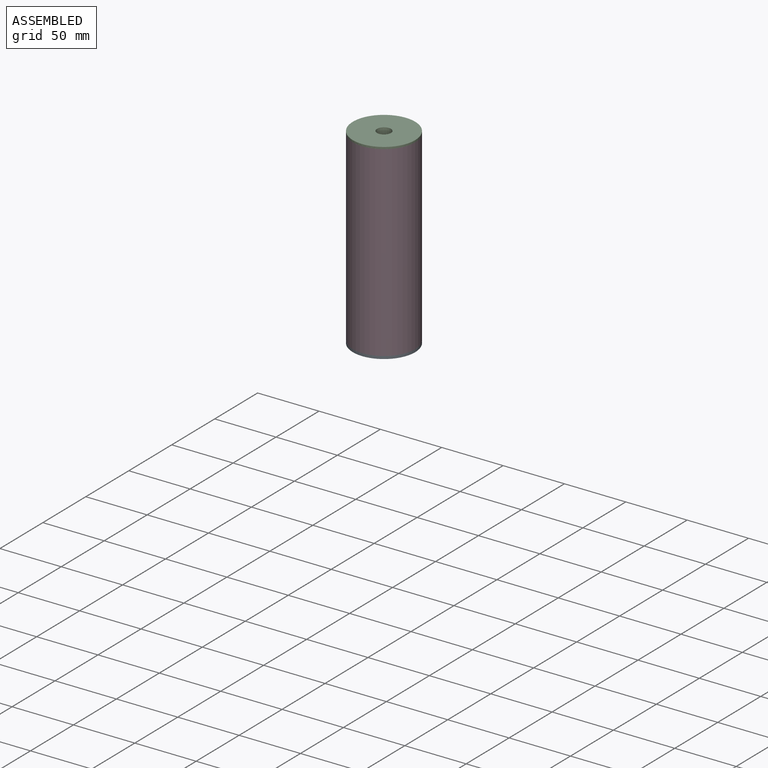
[diagram: assembled view]
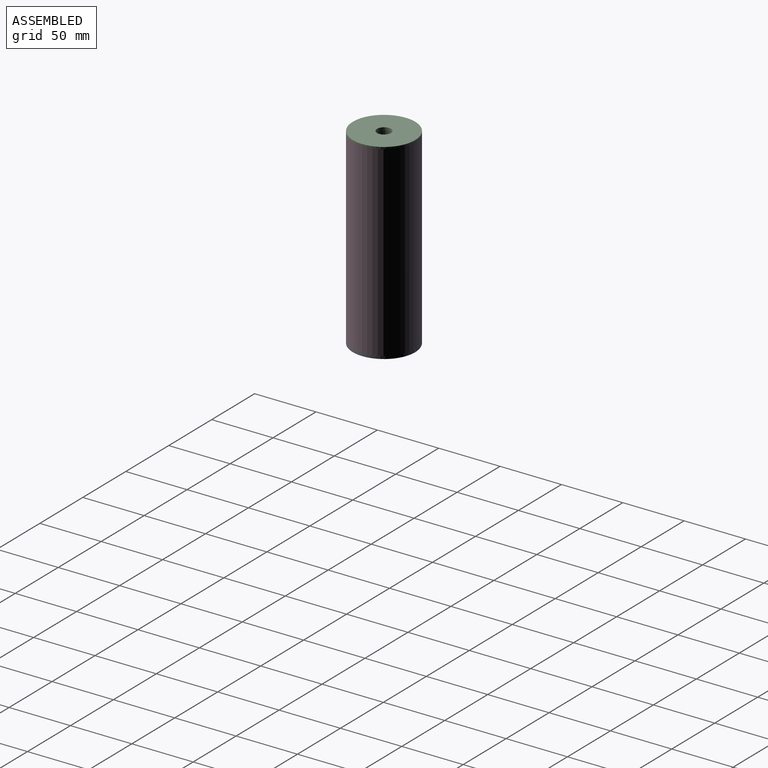
[diagram: assembled view, second angle]
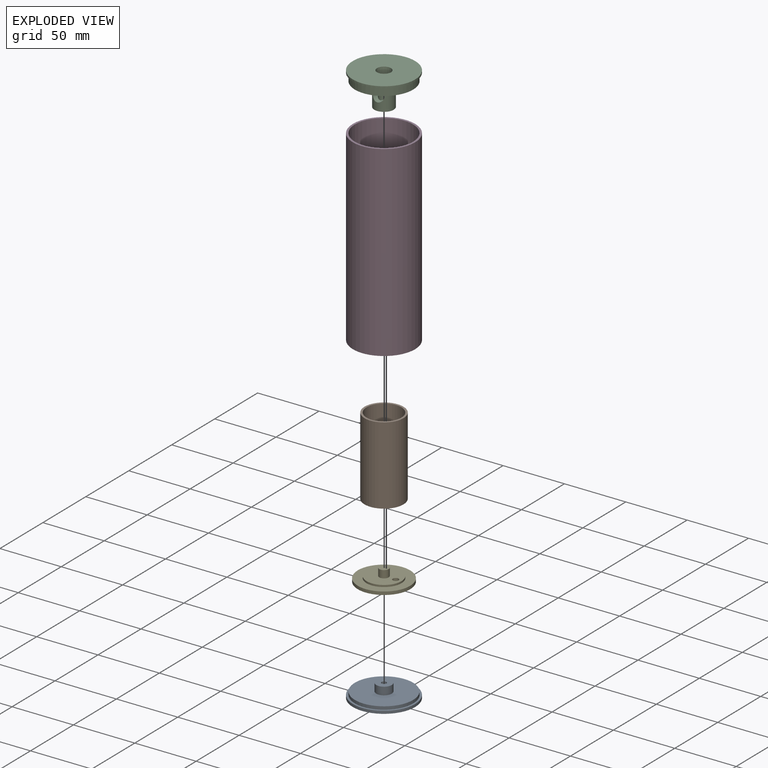
[diagram: exploded view]
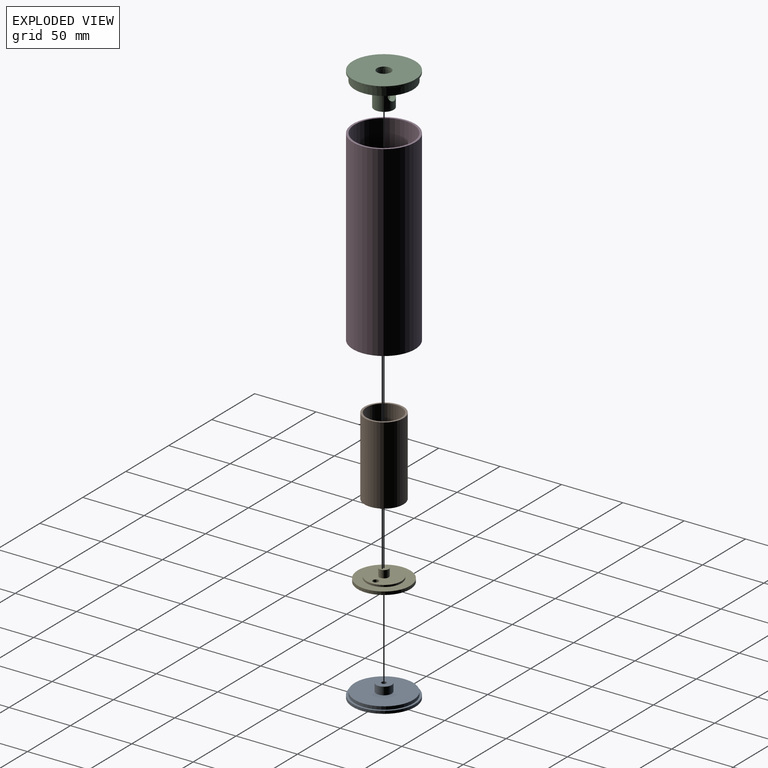
[diagram: exploded view, second angle]
ASSEMBLY  parts=5 mates=8
PART A: 9 faces, bbox 50.8x50.8x11.1 mm
  f0: cylinder r=25.4mm len=50.8mm, axis (0,0,1), area 354.7mm2, adj f1,f3
  f1: plane 50.8x50.8mm, normal (0,0,-1), area 2026.8mm2, adj f0
  f2: cylinder r=23.75mm len=47.5mm, axis (0,0,1), area 379mm2, adj f3,f4
  f3: plane 50.8x50.8mm, normal (0,0,1), area 254.9mm2, adj f0,f2
  f4: plane 47.5x47.5mm, normal (0,0,1), area 1645.2mm2, adj f2,f5
  f5: cylinder r=6.35mm len=12.7mm, axis (0,0,-1), area 253.4mm2, adj f4,f6
  f6: plane 12.7x12.7mm, normal (0,0,1), area 114.3mm2, adj f5,f7
  f7: cylinder r=1.98mm len=7.62mm, axis (0,0,1), area 95mm2, adj f6,f8
  f8: plane 3.97x3.97mm, normal (0,0,1), area 12.4mm2, adj f7
PART B: 4 faces, bbox 31.8x31.8x63.5 mm
  f0: cylinder r=14.22mm len=63.5mm, axis (0,0,1), area 5675.1mm2, adj f2,f3
  f1: cylinder r=15.88mm len=63.5mm, axis (0,0,1), area 6333.8mm2, adj f2,f3
  f2: plane 31.75x31.75mm, normal (0,0,-1), area 156.1mm2, adj f0,f1
  f3: plane 31.75x31.75mm, normal (0,0,1), area 156.1mm2, adj f0,f1
PART C: 16 faces, bbox 50.8x50.8x27 mm
  f0: cylinder r=4.76mm len=15.88mm, axis (0,-1,0), area 311.3mm2, adj f8,f12,f13
  f1: cylinder r=25.4mm len=50.8mm, axis (0,0,1), area 253.4mm2, adj f2,f3
  f2: plane 50.8x50.8mm, normal (0,0,1), area 1924.2mm2, adj f1,f10
  f3: plane 50.8x50.8mm, normal (0,0,-1), area 254.9mm2, adj f1,f4
  f4: cylinder r=23.75mm len=47.5mm, axis (0,0,-1), area 947.5mm2, adj f3,f5
  f5: plane 47.5x47.5mm, normal (0,0,-1), area 1136.3mm2, adj f4,f6
  f6: cylinder r=14.22mm len=28.45mm, axis (0,0,1), area 136.2mm2, adj f5,f7
  f7: plane 28.45x28.45mm, normal (0,0,-1), area 437.7mm2, adj f6,f8
  f8: cylinder r=7.94mm len=17.53mm, axis (0,0,1), area 723.7mm2, adj f0,f7,f9
  f9: plane 15.88x15.88mm, normal (0,0,-1), area 185.6mm2, adj f8,f14
  f10: cone r=5.48mm half-angle=1.5deg, axis (0,0,1), area 312.8mm2, adj f2,f11
  f11: plane 10.96x10.96mm, normal (0,0,1), area 42.5mm2, adj f10,f12
  f12: cylinder r=4.06mm len=8.13mm, axis (0,0,1), area 83.5mm2, adj f0,f11
  f13: cylinder r=4.06mm len=8.13mm, axis (0,0,1), area 107.9mm2, adj f0,f15
  f14: cylinder r=1.98mm len=3.97mm, axis (0,0,1), area 39.6mm2, adj f9,f15
  f15: plane 8.13x8.13mm, normal (0,0,1), area 39.5mm2, adj f13,f14
PART D: 4 faces, bbox 50.8x50.8x152.4 mm
  f0: cylinder r=23.75mm len=152.4mm, axis (0,0,1), area 22741mm2, adj f2,f3
  f1: cylinder r=25.4mm len=152.4mm, axis (0,0,1), area 24322mm2, adj f2,f3
  f2: plane 50.8x50.8mm, normal (0,0,-1), area 254.9mm2, adj f0,f1
  f3: plane 50.8x50.8mm, normal (0,0,1), area 254.9mm2, adj f0,f1
PART E: 10 faces, bbox 42.7x42.7x17.8 mm
  f0: cylinder r=21.34mm len=42.67mm, axis (0,0,1), area 340.5mm2, adj f1,f2
  f1: plane 42.67x42.67mm, normal (0,0,-1), area 1366.7mm2, adj f0,f7,f9
  f2: plane 42.67x42.67mm, normal (0,0,1), area 794.5mm2, adj f0,f3
  f3: cylinder r=14.22mm len=28.45mm, axis (0,0,-1), area 136.2mm2, adj f2,f4
  f4: plane 28.45x28.45mm, normal (0,0,1), area 572.2mm2, adj f3,f6,f9
  f5: plane 7.62x7.62mm, normal (0,0,1), area 45.6mm2, adj f6
  f6: cylinder r=3.81mm len=7.62mm, axis (0,0,-1), area 145.9mm2, adj f4,f5
  f7: cylinder r=3.81mm len=7.62mm, axis (0,0,-1), area 182.4mm2, adj f1,f8
  f8: plane 7.62x7.62mm, normal (0,0,-1), area 45.6mm2, adj f7
  f9: cylinder r=2.38mm len=4.76mm, axis (0,0,1), area 60.8mm2, adj f1,f4
PLACE A t=(-1.54,-0.54,-157.34)mm
PLACE B t=(-1.54,-0.54,-13.83)mm
PLACE C t=(-1.54,-0.54,-5.89)mm
PLACE D t=(-1.54,-0.54,-7.48)mm
PLACE E t=(-1.54,-0.54,-77.33)mm
MATE planar D.f0 <-> C.f4  axis (0,0,1) through (-1.54,-0.54,-7.48)mm
MATE cylindrical B.f0 <-> C.f6  axis (0,0,1) through (-1.54,-0.54,-45.58)mm
MATE planar E.f0 <-> B.f0  axis (0,0,1) through (-1.54,-0.54,-77.33)mm
MATE planar A.f0 <-> D.f0  axis (0,0,1) through (-1.54,-0.54,-159.88)mm
MATE slider A.f0 <-> D.f0  axis (0,0,1) through (-1.54,-0.54,-158.61)mm
MATE cylindrical D.f0 <-> C.f4  axis (0,0,1) through (-1.54,-0.54,-7.48)mm
MATE planar B.f0 <-> C.f4  axis (0,0,1) through (-1.54,-0.54,-13.83)mm
MATE slider E.f0 <-> B.f0  axis (0,0,-1) through (-1.54,-0.54,-76.57)mm
